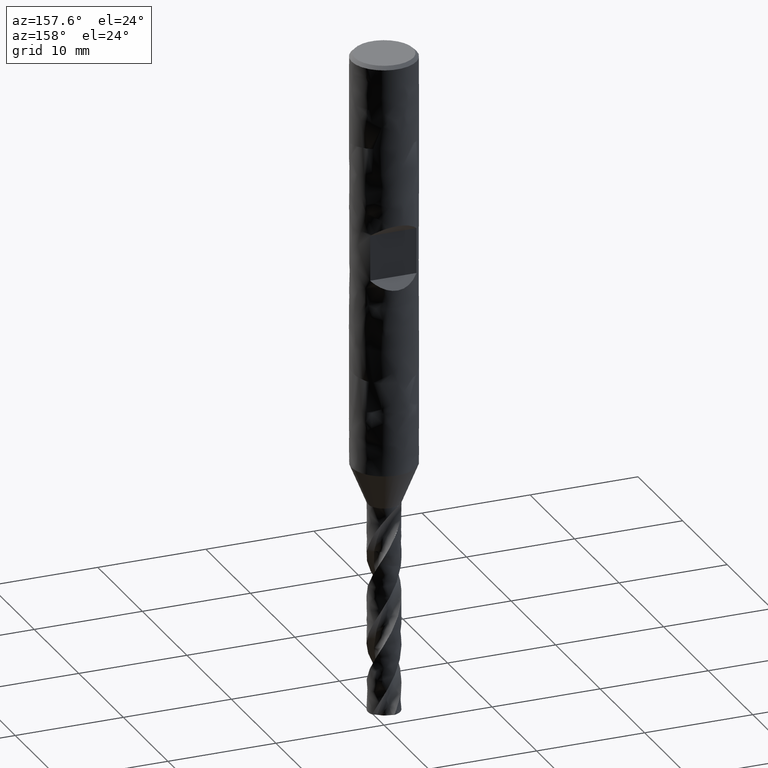
[diagram: clean part render]
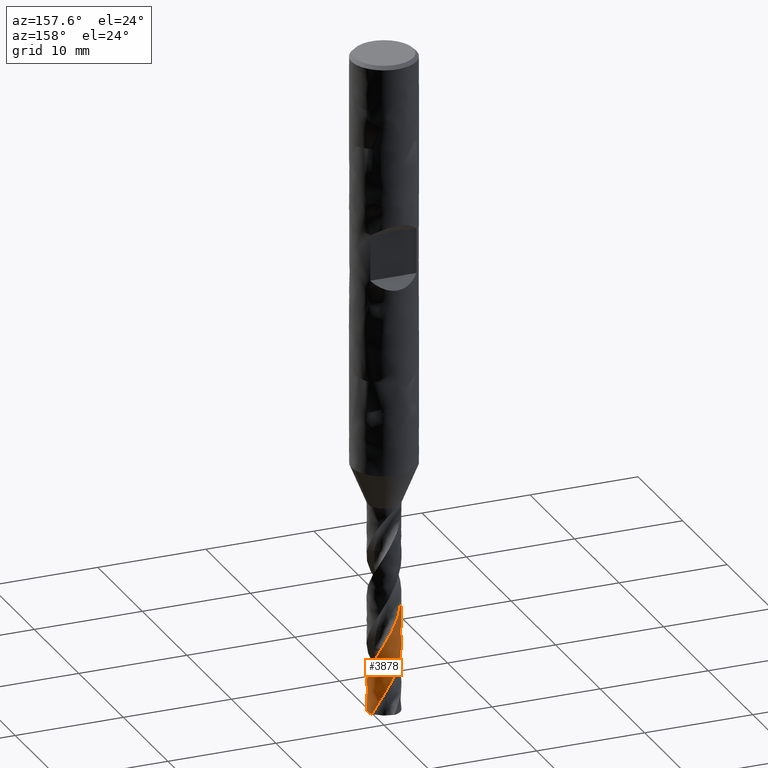
[diagram: same view with one face highlighted and labeled with its STEP entity id]
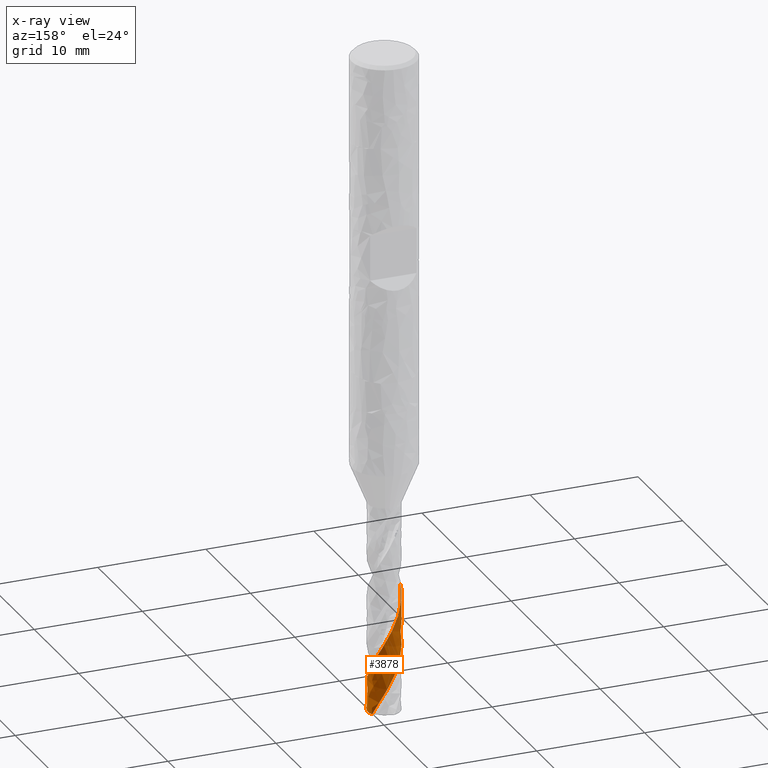
[diagram: x-ray of the same camera — body ghosted, the highlighted face saturated]
A machine part, auxiliary view. The second image highlights one B-rep face of the part: STEP entity #3878.
The next image is the same camera in x-ray: the body ghosted, the highlighted face saturated — about 0% of this face is hidden behind the body in this view.
In plain terms, the highlighted face is a freeform B-spline surface patch.
Its self-contained STEP definition (entity closure, byte-faithful):
#1699 = VERTEX_POINT('', #1700);
#1700 = CARTESIAN_POINT('', (-1.5, 3.41740027781363E-15, -54.3103819026507));
#1800 = EDGE_CURVE('', #1801, #1699, #1803, .T.);
#1801 = VERTEX_POINT('', #1802);
#1802 = CARTESIAN_POINT('', (1.36402506337757, 0.624047775797507, -61.4540446486007));
#1803 = B_SPLINE_CURVE_WITH_KNOTS('', 3, (#1804, #1805, #1806, #1807, #1808, #1809, #1810, #1811, #1812, #1813, #1814, #1815, #1816, #1817, #1818, #1819, #1820, #1821, #1822, #1823, #1824, #1825, #1826, #1827, #1828, #1829, #1830, #1831, #1832, #1833, #1834, #1835, #1836, #1837, #1838, #1839, #1840, #1841, #1842, #1843, #1844, #1845, #1846, #1847, #1848, #1849, #1850, #1851, #1852, #1853, #1854, #1855, #1856, #1857, #1858, #1859, #1860, #1861, #1862, #1863, #1864, #1865, #1866, #1867, #1868, #1869, #1870, #1871, #1872, #1873, #1874, #1875, #1876, #1877, #1878, #1879, #1880, #1881, #1882, #1883, #1884, #1885, #1886, #1887, #1888), .UNSPECIFIED., .F., .U., (4, 3, 3, 3, 3, 3, 3, 3, 3, 3, 3, 3, 3, 3, 3, 3, 3, 3, 3, 3, 3, 3, 3, 3, 3, 3, 3, 3, 4), (0., 0.443892613985302, 0.88748853087916, 1.33079520423711, 1.62624675594899, 1.92161329416679, 2.21689440505489, 2.51208925631208, 2.8071965877195, 3.1022147220413, 3.39714151043316, 3.45549942805264, 3.48144835894082, 3.92628544991433, 4.22239166911702, 4.51840185150683, 4.81431895983337, 5.11014538677696, 5.40588300687049, 5.70153321658979, 5.99709698511393, 6.29257487289695, 6.5879670279586, 6.8832731889615, 7.17849268043902, 7.47362440001157, 7.76866679709681, 8.06361784225344, 8.22012901162197), .UNSPECIFIED.);
#1804 = CARTESIAN_POINT('', (1.36402506337757, 0.624047775797509, -61.4540446486007));
#1805 = CARTESIAN_POINT('', (1.33361656175587, 0.690513774011757, -61.3253939588564));
#1806 = CARTESIAN_POINT('', (1.29831440715912, 0.754800844518819, -61.1966636268079));
#1807 = CARTESIAN_POINT('', (1.25853747785152, 0.816139336659582, -61.0680215219669));
#1808 = CARTESIAN_POINT('', (1.2187871353779, 0.877436830253314, -60.9394654012966));
#1809 = CARTESIAN_POINT('', (1.17451709888051, 0.935868176912462, -60.8108296889209));
#1810 = CARTESIAN_POINT('', (1.12625317830449, 0.990733959425563, -60.6822820771606));
#1811 = CARTESIAN_POINT('', (1.0780207278717, 1.0455639670987, -60.5538182839485));
#1812 = CARTESIAN_POINT('', (1.02573786307011, 1.09690322431961, -60.425274976682));
#1813 = CARTESIAN_POINT('', (0.970025986863271, 1.14413704808906, -60.2968195450169));
#1814 = CARTESIAN_POINT('', (0.932895572945953, 1.17561707617044, -60.2112075772931));
#1815 = CARTESIAN_POINT('', (0.894217485994377, 1.20529888006559, -60.1255728673317));
#1816 = CARTESIAN_POINT('', (0.854197027885903, 1.23302369707597, -60.0399646534866));
#1817 = CARTESIAN_POINT('', (0.814188085299885, 1.26074053652268, -59.9543810726257));
#1818 = CARTESIAN_POINT('', (0.772814012301869, 1.28651781376227, -59.8687747770296));
#1819 = CARTESIAN_POINT('', (0.730294519269985, 1.31021750679963, -59.7831949590174));
#1820 = CARTESIAN_POINT('', (0.687787323930223, 1.33391034529787, -59.6976398928115));
#1821 = CARTESIAN_POINT('', (0.644110398519465, 1.35554072347135, -59.6120620952617));
#1822 = CARTESIAN_POINT('', (0.599495624388484, 1.37499272592224, -59.5265108057615));
#1823 = CARTESIAN_POINT('', (0.55489388344455, 1.394439045915, -59.4409845081161));
#1824 = CARTESIAN_POINT('', (0.509328840051526, 1.41171960958914, -59.3554354049121));
#1825 = CARTESIAN_POINT('', (0.463042134407975, 1.42674173618176, -59.2699129000451));
#1826 = CARTESIAN_POINT('', (0.41676915192222, 1.44175940898985, -59.1844157510295));
#1827 = CARTESIAN_POINT('', (0.369748320757895, 1.45452863343373, -59.0988956897155));
#1828 = CARTESIAN_POINT('', (0.322228653773529, 1.46498078304372, -59.0134023232318));
#1829 = CARTESIAN_POINT('', (0.274723349752579, 1.47542977345981, -58.9279347973773));
#1830 = CARTESIAN_POINT('', (0.226692513376678, 1.48356903554982, -58.842444285489));
#1831 = CARTESIAN_POINT('', (0.178390267763989, 1.48935452876987, -58.7569805246105));
#1832 = CARTESIAN_POINT('', (0.130102977888017, 1.49513823063814, -58.6715432257213));
#1833 = CARTESIAN_POINT('', (0.0815171878159906, 1.49857288856306, -58.5860829127309));
#1834 = CARTESIAN_POINT('', (0.0328898616455863, 1.4996393756505, -58.5006493633071));
#1835 = CARTESIAN_POINT('', (0.0232678482971832, 1.49985040417704, -58.4837444084659));
#1836 = CARTESIAN_POINT('', (0.0136435651749297, 1.49996882820287, -58.4668393357588));
#1837 = CARTESIAN_POINT('', (0.00401902435641482, 1.49999461580475, -58.4499345222097));
#1838 = CARTESIAN_POINT('', (-0.000260541377210574, 1.50000608229852, -58.4424177728746));
#1839 = CARTESIAN_POINT('', (-0.00454018917412268, 1.49999923396253, -58.4349010200096));
#1840 = CARTESIAN_POINT('', (-0.00881974195132215, 1.49997407049343, -58.4273842966714));
#1841 = CARTESIAN_POINT('', (-0.0821832194788096, 1.49954269840962, -58.2985266817735));
#1842 = CARTESIAN_POINT('', (-0.155570168872683, 1.49371433056338, -58.1695884104485));
#1843 = CARTESIAN_POINT('', (-0.228096496080459, 1.48255589725215, -58.0407393046629));
#1844 = CARTESIAN_POINT('', (-0.276373712566956, 1.47512827584409, -57.9549707787552));
#1845 = CARTESIAN_POINT('', (-0.324305141501079, 1.46533705297268, -57.8691791585663));
#1846 = CARTESIAN_POINT('', (-0.371633915506548, 1.45323371583696, -57.7834143895224));
#1847 = CARTESIAN_POINT('', (-0.418947339261605, 1.44113430420448, -57.6976774367638));
#1848 = CARTESIAN_POINT('', (-0.465686353211799, 1.42671714819546, -57.6119174502957));
#1849 = CARTESIAN_POINT('', (-0.511600312885757, 1.41005855192443, -57.5261842573367));
#1850 = CARTESIAN_POINT('', (-0.55749983589827, 1.39340519359228, -57.4404780213444));
#1851 = CARTESIAN_POINT('', (-0.602601960556023, 1.37450195462755, -57.3547487882909));
#1852 = CARTESIAN_POINT('', (-0.646664728676739, 1.35344919693554, -57.269046318644));
#1853 = CARTESIAN_POINT('', (-0.690713994121748, 1.33240289068932, -57.1833701118195));
#1854 = CARTESIAN_POINT('', (-0.733750597959446, 1.30919593336018, -57.0976709091719));
#1855 = CARTESIAN_POINT('', (-0.775543676028058, 1.2839517150473, -57.0119984790907));
#1856 = CARTESIAN_POINT('', (-0.817324207849006, 1.25871507502799, -56.9263517678026));
#1857 = CARTESIAN_POINT('', (-0.857886563468358, 1.23142754332114, -56.8406820142341));
#1858 = CARTESIAN_POINT('', (-0.897013292399723, 1.20223423394038, -56.7550390941314));
#1859 = CARTESIAN_POINT('', (-0.936128456748884, 1.17304955314769, -56.6694214872767));
#1860 = CARTESIAN_POINT('', (-0.973831644617153, 1.14194322039067, -56.5837807525925));
#1861 = CARTESIAN_POINT('', (-1.0099209335908, 1.10908056871225, -56.4981669358069));
#1862 = CARTESIAN_POINT('', (-1.04599967090182, 1.07622752530331, -56.4125781504957));
#1863 = CARTESIAN_POINT('', (-1.08048625275594, 1.04160025998082, -56.3269661629425));
#1864 = CARTESIAN_POINT('', (-1.11319610502739, 1.00538272899023, -56.2413811529724));
#1865 = CARTESIAN_POINT('', (-1.14589645293243, 0.969175721577756, -56.1558210110846));
#1866 = CARTESIAN_POINT('', (-1.17683981791797, 0.931358656404296, -56.0702376305212));
#1867 = CARTESIAN_POINT('', (-1.20586059182671, 0.892132407818109, -55.9846812507338));
#1868 = CARTESIAN_POINT('', (-1.23487294537635, 0.85291754070302, -55.8991496950755));
#1869 = CARTESIAN_POINT('', (-1.26198037684881, 0.812271932593048, -55.813594897437));
#1870 = CARTESIAN_POINT('', (-1.28703771624542, 0.770411524421716, -55.7280670923397));
#1871 = CARTESIAN_POINT('', (-1.31208776099225, 0.728563302580787, -55.6425641859507));
#1872 = CARTESIAN_POINT('', (-1.33510320895868, 0.685477089005118, -55.5570380618178));
#1873 = CARTESIAN_POINT('', (-1.35596064033692, 0.641381900163305, -55.4715388963754));
#1874 = CARTESIAN_POINT('', (-1.37681195025914, 0.597299652836412, -55.386064824118));
#1875 = CARTESIAN_POINT('', (-1.39551845664922, 0.552183752953386, -55.3005675795396));
#1876 = CARTESIAN_POINT('', (-1.4119796260725, 0.50627417034269, -55.215097240773));
#1877 = CARTESIAN_POINT('', (-1.42843590141447, 0.460378237140785, -55.1296523132502));
#1878 = CARTESIAN_POINT('', (-1.44265765490147, 0.413662632558517, -55.0441842728621));
#1879 = CARTESIAN_POINT('', (-1.45456818322171, 0.366376036824403, -54.9587430737776));
#1880 = CARTESIAN_POINT('', (-1.46647510678535, 0.319103752518262, -54.8733277337246));
#1881 = CARTESIAN_POINT('', (-1.47607910739006, 0.271233384611796, -54.787889346304));
#1882 = CARTESIAN_POINT('', (-1.48332804591319, 0.223019972665049, -54.7024777322964));
#1883 = CARTESIAN_POINT('', (-1.49057473999782, 0.174821488702247, -54.6170925636937));
#1884 = CARTESIAN_POINT('', (-1.4954720574103, 0.126252011123265, -54.5316844103939));
#1885 = CARTESIAN_POINT('', (-1.49799292999016, 0.0775704950343546, -54.4463029683735));
#1886 = CARTESIAN_POINT('', (-1.49933059168617, 0.0517384082022425, -54.4009966385522));
#1887 = CARTESIAN_POINT('', (-1.5, 0.025868607815089, -54.3556871418676));
#1888 = CARTESIAN_POINT('', (-1.5, 3.33369987009775E-15, -54.3103819026507));
#2118 = VERTEX_POINT('', #2119);
#2119 = CARTESIAN_POINT('', (-1.5, 3.132329119477E-15, -49.6548165831626));
#2150 = EDGE_CURVE('', #2118, #1699, #2151, .T.);
#2151 = LINE('', #2152, #2153);
#2152 = CARTESIAN_POINT('', (-1.5, 3.132329119477E-15, -49.6548165831626));
#2153 = VECTOR('', #2154, 4.65556531948811);
#2154 = DIRECTION('', (0., 2.85071158336627E-16, -4.65556531948811));
#2236 = VERTEX_POINT('', #2237);
#2237 = CARTESIAN_POINT('', (0.339563992923457, -1.4610599901133, -61.4540446486007));
#2319 = EDGE_CURVE('', #2320, #2236, #2322, .T.);
#2320 = VERTEX_POINT('', #2321);
#2321 = CARTESIAN_POINT('', (0.576933502301421, -1.38461104066167, -61.0129924518385));
#2322 = B_SPLINE_CURVE_WITH_KNOTS('', 3, (#2323, #2324, #2325, #2326, #2327, #2328, #2329), .UNSPECIFIED., .F., .U., (4, 3, 4), (0., 0.29518519090963, 0.506774732636537), .UNSPECIFIED.);
#2323 = CARTESIAN_POINT('', (0.57693350230142, -1.38461104066168, -61.0129924518385));
#2324 = CARTESIAN_POINT('', (0.53218490222688, -1.40325668612161, -61.0986165795408));
#2325 = CARTESIAN_POINT('', (0.486522783597822, -1.41973410562699, -61.1842676221976));
#2326 = CARTESIAN_POINT('', (0.440186733506665, -1.43395803273477, -61.2698961157475));
#2327 = CARTESIAN_POINT('', (0.406972927712375, -1.44415378208458, -61.331274851087));
#2328 = CARTESIAN_POINT('', (0.373401793485711, -1.45319576910361, -61.3926637343598));
#2329 = CARTESIAN_POINT('', (0.339563992923457, -1.4610599901133, -61.4540446486007));
#3688 = EDGE_CURVE('', #1801, #2236, #3689, .T.);
#3689 = CIRCLE('', #3690, 1.5);
#3690 = AXIS2_PLACEMENT_3D('', #3691, #3692, #3693);
#3691 = CARTESIAN_POINT('', (2.30415761614694E-31, 3.76297495367837E-15, -61.4540446486007));
#3692 = DIRECTION('', (3.74939945665464E-33, 6.12323399573677E-17, -1.));
#3693 = DIRECTION('', (-1., 6.12323399573677E-17, 0.));
#3878 = ADVANCED_FACE('', (#3879), #4021, .T.);
#3879 = FACE_OUTER_BOUND('', #3880, .T.);
#3880 = EDGE_LOOP('', (#3881, #3882, #3883, #3884, #3885));
#3881 = ORIENTED_EDGE('', *, *, #2319, .T.);
#3882 = ORIENTED_EDGE('', *, *, #3688, .F.);
#3883 = ORIENTED_EDGE('', *, *, #1800, .T.);
#3884 = ORIENTED_EDGE('', *, *, #2150, .F.);
#3885 = ORIENTED_EDGE('', *, *, #3886, .F.);
#3886 = EDGE_CURVE('', #2320, #2118, #3887, .T.);
#3887 = B_SPLINE_CURVE_WITH_KNOTS('', 3, (#3888, #3889, #3890, #3891, #3892, #3893, #3894, #3895, #3896, #3897, #3898, #3899, #3900, #3901, #3902, #3903, #3904, #3905, #3906, #3907, #3908, #3909, #3910, #3911, #3912, #3913, #3914, #3915, #3916, #3917, #3918, #3919, #3920, #3921, #3922, #3923, #3924, #3925, #3926, #3927, #3928, #3929, #3930, #3931, #3932, #3933, #3934, #3935, #3936, #3937, #3938, #3939, #3940, #3941, #3942, #3943, #3944, #3945, #3946, #3947, #3948, #3949, #3950, #3951, #3952, #3953, #3954, #3955, #3956, #3957, #3958, #3959, #3960, #3961, #3962, #3963, #3964, #3965, #3966, #3967, #3968, #3969, #3970, #3971, #3972, #3973, #3974, #3975, #3976, #3977, #3978, #3979, #3980, #3981, #3982, #3983, #3984, #3985, #3986, #3987, #3988, #3989, #3990, #3991, #3992, #3993, #3994, #3995, #3996, #3997, #3998, #3999, #4000, #4001, #4002, #4003, #4004, #4005, #4006, #4007, #4008, #4009, #4010, #4011, #4012, #4013, #4014, #4015, #4016, #4017, #4018, #4019, #4020), .UNSPECIFIED., .F., .U., (4, 3, 3, 3, 3, 3, 3, 3, 3, 3, 3, 3, 3, 3, 3, 3, 3, 3, 3, 3, 3, 3, 3, 3, 3, 3, 3, 3, 3, 3, 3, 3, 3, 3, 3, 3, 3, 3, 3, 3, 3, 3, 3, 3, 4), (0., 0.443960123811513, 0.887624648255791, 1.33100110600915, 1.77409402837916, 2.06945066210197, 2.36472232120494, 2.65990806701977, 2.95500652978959, 3.25001589724884, 3.54493390414548, 3.60330507877786, 4.0481284175225, 4.34422962873711, 4.6402354539754, 4.93614874957008, 5.2319718106576, 5.5277064212245, 5.8233538962201, 6.11891513372069, 6.41439061670736, 6.70978041781783, 7.00508420133459, 7.300301217346, 7.59543028787929, 7.89046978447147, 8.18541759627434, 8.3166466923451, 8.35556631498481, 8.6518272063546, 8.94798553948529, 9.24404524014352, 9.54000955516152, 9.83588112809574, 10.1316620581541, 10.4273539453267, 10.7229579238672, 11.0184746856609, 11.3139044945319, 11.6092471925424, 11.9045022097871, 12.1996685554703, 12.4947447936461, 12.7897290154414, 13.073353303165), .UNSPECIFIED.);
#3888 = CARTESIAN_POINT('', (0.576933502301421, -1.38461104066167, -61.0129924518385));
#3889 = CARTESIAN_POINT('', (0.644235638862759, -1.35656788903395, -60.8842133006255));
#3890 = CARTESIAN_POINT('', (0.709542922785359, -1.3235817684258, -60.7553585135879));
#3891 = CARTESIAN_POINT('', (0.772076470821059, -1.28603962738502, -60.6265943542025));
#3892 = CARTESIAN_POINT('', (0.834568382510974, -1.24852248280798, -60.4979159291027));
#3893 = CARTESIAN_POINT('', (0.894370120345339, -1.20640739738555, -60.3691621626183));
#3894 = CARTESIAN_POINT('', (0.950767613079925, -1.16019004732773, -60.2404990691652));
#3895 = CARTESIAN_POINT('', (1.007128487518, -1.11400270570727, -60.1119195153001));
#3896 = CARTESIAN_POINT('', (1.0601611839113, -1.06365972199887, -59.9832644632246));
#3897 = CARTESIAN_POINT('', (1.10923215636329, -1.00975443712302, -59.8547001591172));
#3898 = CARTESIAN_POINT('', (1.15827174835576, -0.955883624207391, -59.7262180707626));
#3899 = CARTESIAN_POINT('', (1.20341674357393, -0.898386843134977, -59.5976604349818));
#3900 = CARTESIAN_POINT('', (1.24412685456813, -0.837942939431081, -59.4691932622769));
#3901 = CARTESIAN_POINT('', (1.27126337770963, -0.797652275722079, -59.3835596857551));
#3902 = CARTESIAN_POINT('', (1.29645171537913, -0.756025017532918, -59.2979051235979));
#3903 = CARTESIAN_POINT('', (1.31955672888457, -0.713281178256836, -59.212278256009));
#3904 = CARTESIAN_POINT('', (1.34265509503723, -0.670549636458035, -59.1266760234196));
#3905 = CARTESIAN_POINT('', (1.36368496888783, -0.62667693071333, -59.0410527985901));
#3906 = CARTESIAN_POINT('', (1.38253322007243, -0.581895089682118, -58.9554572873244));
#3907 = CARTESIAN_POINT('', (1.40137598710309, -0.537126278534043, -58.8698866812318));
#3908 = CARTESIAN_POINT('', (1.41804946722344, -0.491422586273327, -58.7842950022501));
#3909 = CARTESIAN_POINT('', (1.43246368640637, -0.445025602777107, -58.6987311363029));
#3910 = CARTESIAN_POINT('', (1.44687364346974, -0.398642338337636, -58.6131925706111));
#3911 = CARTESIAN_POINT('', (1.45903401738817, -0.351539392955993, -58.527632774172));
#3912 = CARTESIAN_POINT('', (1.46887884341289, -0.303965365418769, -58.4421009578248));
#3913 = CARTESIAN_POINT('', (1.47872069711501, -0.256405701300178, -58.3565949650066));
#3914 = CARTESIAN_POINT('', (1.48625398518913, -0.20834832423596, -58.2710675741645));
#3915 = CARTESIAN_POINT('', (1.49143726589458, -0.16004649918468, -58.1855683002434));
#3916 = CARTESIAN_POINT('', (1.49661894140543, -0.111759632580143, -58.100095504335));
#3917 = CARTESIAN_POINT('', (1.49945496122085, -0.0632015350609217, -58.0146012168791));
#3918 = CARTESIAN_POINT('', (1.49992867238243, -0.0146279788720253, -57.9291351105861));
#3919 = CARTESIAN_POINT('', (1.50002243090612, -0.005014135483306, -57.9122193682479));
#3920 = CARTESIAN_POINT('', (1.50002375797263, 0.00460094641178871, -57.8953035648978));
#3921 = CARTESIAN_POINT('', (1.49993264068326, 0.0142152528277466, -57.8783880712899));
#3922 = CARTESIAN_POINT('', (1.49923827232194, 0.0874820305925438, -57.7494818707457));
#3923 = CARTESIAN_POINT('', (1.49316076820648, 0.160758556064702, -57.6204986673147));
#3924 = CARTESIAN_POINT('', (1.48176733604269, 0.233164237903151, -57.4916075568716));
#3925 = CARTESIAN_POINT('', (1.47418318123393, 0.281361821581404, -57.4058098691318));
#3926 = CARTESIAN_POINT('', (1.46424147203574, 0.329209033220433, -57.3199907518989));
#3927 = CARTESIAN_POINT('', (1.45199370594134, 0.376449568875774, -57.2341997633583));
#3928 = CARTESIAN_POINT('', (1.43974988533951, 0.423674886475784, -57.148436411507));
#3929 = CARTESIAN_POINT('', (1.42519421646421, 0.47032195036422, -57.0626516866741));
#3930 = CARTESIAN_POINT('', (1.40840296644399, 0.516140566233446, -56.9768950388344));
#3931 = CARTESIAN_POINT('', (1.39161696526771, 0.561944859478469, -56.8911651980079));
#3932 = CARTESIAN_POINT('', (1.37258677277263, 0.60694851966625, -56.8054139959988));
#3933 = CARTESIAN_POINT('', (1.35141266046195, 0.650909994656063, -56.7196908695517));
#3934 = CARTESIAN_POINT('', (1.33024500489255, 0.694858064225811, -56.6339938831401));
#3935 = CARTESIAN_POINT('', (1.3069221587217, 0.737790706798585, -56.548275485545));
#3936 = CARTESIAN_POINT('', (1.28156733199191, 0.779477500362351, -56.4625852297097));
#3937 = CARTESIAN_POINT('', (1.25622008630607, 0.821151829655821, -56.3769205950944));
#3938 = CARTESIAN_POINT('', (1.22882718918707, 0.861605552291037, -56.2912344247394));
#3939 = CARTESIAN_POINT('', (1.19953342988958, 0.900621757774791, -56.2055765378547));
#3940 = CARTESIAN_POINT('', (1.17024830173758, 0.939626467480798, -56.1199438893041));
#3941 = CARTESIAN_POINT('', (1.13904654220661, 0.977217024545694, -56.0342895464313));
#3942 = CARTESIAN_POINT('', (1.10609303585948, 1.01319208249135, -55.9486636260967));
#3943 = CARTESIAN_POINT('', (1.07314914172988, 1.04915664686225, -55.8630626820108));
#3944 = CARTESIAN_POINT('', (1.03843579890946, 1.083527105839, -55.7774399375868));
#3945 = CARTESIAN_POINT('', (1.00213647611784, 1.11611938574425, -55.6918456963397));
#3946 = CARTESIAN_POINT('', (0.965847685257978, 1.1487022092839, -55.6062762895149));
#3947 = CARTESIAN_POINT('', (0.927953358522504, 1.17952627119615, -55.5206850377996));
#3948 = CARTESIAN_POINT('', (0.888653916705553, 1.20842633880758, -55.435122311796));
#3949 = CARTESIAN_POINT('', (0.849365870926861, 1.23731802598761, -55.3495843972414));
#3950 = CARTESIAN_POINT('', (0.808651365758289, 1.26430312366879, -55.2640246443569));
#3951 = CARTESIAN_POINT('', (0.766725992295305, 1.28923669383818, -55.1784933922079));
#3952 = CARTESIAN_POINT('', (0.724812827512944, 1.31416300334487, -55.0929870467838));
#3953 = CARTESIAN_POINT('', (0.681665740547317, 1.33705309889844, -55.0074589094831));
#3954 = CARTESIAN_POINT('', (0.637513560008118, 1.35778365758533, -54.9219592119068));
#3955 = CARTESIAN_POINT('', (0.593374352464101, 1.37850812512485, -54.8364846362418));
#3956 = CARTESIAN_POINT('', (0.54820539658208, 1.39708616447681, -54.7509883429151));
#3957 = CARTESIAN_POINT('', (0.502246676043336, 1.41341723365872, -54.6655204046672));
#3958 = CARTESIAN_POINT('', (0.456301646658668, 1.42974343779692, -54.5800779274135));
#3959 = CARTESIAN_POINT('', (0.409540750396427, 1.44383343831409, -54.4946138213845));
#3960 = CARTESIAN_POINT('', (0.362212898654281, 1.45561046164439, -54.4091779755297));
#3961 = CARTESIAN_POINT('', (0.314899411278874, 1.46738391055759, -54.3237680601107));
#3962 = CARTESIAN_POINT('', (0.266991629010273, 1.4768526611458, -54.2383366053714));
#3963 = CARTESIAN_POINT('', (0.218745027478863, 1.48396449181022, -54.1529333200476));
#3964 = CARTESIAN_POINT('', (0.170513418785862, 1.49107411244274, -54.0675565741612));
#3965 = CARTESIAN_POINT('', (0.121914689956023, 1.49583246918274, -53.9821583638003));
#3966 = CARTESIAN_POINT('', (0.0732083946548478, 1.49821244520017, -53.8967882517411));
#3967 = CARTESIAN_POINT('', (0.0515378385443959, 1.4992713515183, -53.8588051164586));
#3968 = CARTESIAN_POINT('', (0.0298418508333122, 1.49986009424185, -53.8208204659838));
#3969 = CARTESIAN_POINT('', (0.00814336048740556, 1.49997789506379, -53.7828387007498));
#3970 = CARTESIAN_POINT('', (0.00170807226703586, 1.50001283215985, -53.7715741564197));
#3971 = CARTESIAN_POINT('', (-0.00472757759731467, 1.50000635558633, -53.7603096141093));
#3972 = CARTESIAN_POINT('', (-0.0111629871042724, 1.49995846199784, -53.7490451867058));
#3973 = CARTESIAN_POINT('', (-0.0601501053636327, 1.49959389018918, -53.6632989981002));
#3974 = CARTESIAN_POINT('', (-0.109139258144268, 1.49682652417861, -53.5775306269597));
#3975 = CARTESIAN_POINT('', (-0.15786734317521, 1.49166950158502, -53.4917911472812));
#3976 = CARTESIAN_POINT('', (-0.206578559740754, 1.4865142642259, -53.4060813485032));
#3977 = CARTESIAN_POINT('', (-0.255056796003431, 1.47896806501853, -53.320349390423));
#3978 = CARTESIAN_POINT('', (-0.303041475292439, 1.46906972749854, -53.2346462856603));
#3979 = CARTESIAN_POINT('', (-0.351010173779865, 1.45917468651758, -53.1489717234311));
#3980 = CARTESIAN_POINT('', (-0.398513277877646, 1.4469233636399, -53.0632750559818));
#3981 = CARTESIAN_POINT('', (-0.445295125833414, 1.43237992547684, -52.9776071764002));
#3982 = CARTESIAN_POINT('', (-0.492061901435503, 1.41784117297399, -52.8919668976219));
#3983 = CARTESIAN_POINT('', (-0.538135058605278, 1.40100332212008, -52.8063045881605));
#3984 = CARTESIAN_POINT('', (-0.583266238032689, 1.38195531605447, -52.7206709844631));
#3985 = CARTESIAN_POINT('', (-0.628383275351031, 1.36291327878877, -52.6350642145374));
#3986 = CARTESIAN_POINT('', (-0.67258540718014, 1.3416512805158, -52.5494354975542));
#3987 = CARTESIAN_POINT('', (-0.715633941991976, 1.31828223877478, -52.4638353992167));
#3988 = CARTESIAN_POINT('', (-0.758669288504037, 1.2949203563466, -52.3782615252272));
#3989 = CARTESIAN_POINT('', (-0.800577265121248, 1.26943885362899, -52.2926657845177));
#3990 = CARTESIAN_POINT('', (-0.841131167167909, 1.24197357444463, -52.2070985829876));
#3991 = CARTESIAN_POINT('', (-0.881672860731544, 1.21451656350026, -52.1215571408956));
#3992 = CARTESIAN_POINT('', (-0.920885548832099, 1.18506053211071, -52.0359938956991));
#3993 = CARTESIAN_POINT('', (-0.958556758660112, 1.15376294810807, -51.9504591316094));
#3994 = CARTESIAN_POINT('', (-0.996216768909542, 1.12247466881726, -51.8649497968413));
#3995 = CARTESIAN_POINT('', (-1.03235887629391, 1.08932709832778, -51.7794186913204));
#3996 = CARTESIAN_POINT('', (-1.06678697946444, 1.05449776692279, -51.6939160450959));
#3997 = CARTESIAN_POINT('', (-1.1012049247637, 1.01967871176981, -51.6084386260779));
#3998 = CARTESIAN_POINT('', (-1.13393060398942, 0.98315791865107, -51.522939421687));
#3999 = CARTESIAN_POINT('', (-1.16478628675658, 0.94513115819119, -51.4374687070987));
#4000 = CARTESIAN_POINT('', (-1.19563289054027, 0.907115586734402, -51.3520231414339));
#4001 = CARTESIAN_POINT('', (-1.22462906680563, 0.867572184144235, -51.2665557121354));
#4002 = CARTESIAN_POINT('', (-1.25161727720155, 0.826712883297815, -51.1811168722327));
#4003 = CARTESIAN_POINT('', (-1.27859752981474, 0.7858656302839, -51.0957032249498));
#4004 = CARTESIAN_POINT('', (-1.30358694634123, 0.743679133770045, -51.0102675866933));
#4005 = CARTESIAN_POINT('', (-1.32644970663071, 0.700379308503119, -50.9248606632279));
#4006 = CARTESIAN_POINT('', (-1.34930567946838, 0.657092338004124, -50.8394790952039));
#4007 = CARTESIAN_POINT('', (-1.37004958250694, 0.612667482224507, -50.7540754307765));
#4008 = CARTESIAN_POINT('', (-1.38856849483653, 0.567342520129987, -50.6687005681714));
#4009 = CARTESIAN_POINT('', (-1.40708184553031, 0.522031170116311, -50.5833513455113));
#4010 = CARTESIAN_POINT('', (-1.42338224226565, 0.475794069775146, -50.497979974953));
#4011 = CARTESIAN_POINT('', (-1.43738061840664, 0.428878721585752, -50.4126374417568));
#4012 = CARTESIAN_POINT('', (-1.45137472116483, 0.381977695574828, -50.3273209616763));
#4013 = CARTESIAN_POINT('', (-1.46307627450716, 0.334371791977183, -50.2419823284875));
#4014 = CARTESIAN_POINT('', (-1.47242084640022, 0.286315998655777, -50.1566725246511));
#4015 = CARTESIAN_POINT('', (-1.4817625042881, 0.238275191021432, -50.071389323768));
#4016 = CARTESIAN_POINT('', (-1.48875404423603, 0.189756998566317, -49.9860840021723));
#4017 = CARTESIAN_POINT('', (-1.49335625950738, 0.141021566402289, -49.9008074673605));
#4018 = CARTESIAN_POINT('', (-1.49778124203812, 0.0941629508793936, -49.8188149584109));
#4019 = CARTESIAN_POINT('', (-1.5, 0.0470777939699097, -49.736802942747));
#4020 = CARTESIAN_POINT('', (-1.5, 3.20388646286104E-15, -49.6548165831626));
#4021 = (
   BOUNDED_SURFACE ()
   B_SPLINE_SURFACE (2, 1, ((#4022, #4023), (#4024, #4025), (#4026, #4027), (#4028, #4029), (#4030, #4031), (#4032, #4033), (#4034, #4035)), .UNSPECIFIED., .F., .F., .U.)
   B_SPLINE_SURFACE_WITH_KNOTS ((3, 2, 2, 3), (2, 2), (0., 2.35619449019235, 4.71238898038469, 6.70379063924259), (0.393482009599129, 1.), .UNSPECIFIED.)
   GEOMETRIC_REPRESENTATION_ITEM ()
   RATIONAL_B_SPLINE_SURFACE (((1., 1.), (0.707106781186548, 0.707106781186548), (1., 1.), (0.707106781186548, 0.707106781186548), (1., 1.), (0.752453354661005, 0.752453354661005), (0.923348227816979, 0.923348227816979)))
   REPRESENTATION_ITEM ('')
   SURFACE ()
);
#4022 = CARTESIAN_POINT('', (-1.5, 3.132329119477E-15, -49.6548165831626));
#4023 = CARTESIAN_POINT('', (-1.5, 3.85482346361442E-15, -61.4540446486007));
#4024 = CARTESIAN_POINT('', (-1.5, 1.5, -49.6548165831626));
#4025 = CARTESIAN_POINT('', (-1.5, 1.5, -61.4540446486007));
#4026 = CARTESIAN_POINT('', (1.97215226305253E-31, 1.5, -49.6548165831626));
#4027 = CARTESIAN_POINT('', (2.34193081237488E-31, 1.5, -61.4540446486007));
#4028 = CARTESIAN_POINT('', (1.5, 1.5, -49.6548165831626));
#4029 = CARTESIAN_POINT('', (1.5, 1.5, -61.4540446486007));
#4030 = CARTESIAN_POINT('', (1.5, 3.132329119477E-15, -49.6548165831626));
#4031 = CARTESIAN_POINT('', (1.5, 3.85482346361442E-15, -61.4540446486007));
#4032 = CARTESIAN_POINT('', (1.5, -1.19136381968808, -49.6548165831626));
#4033 = CARTESIAN_POINT('', (1.5, -1.19136381968808, -61.4540446486007));
#4034 = CARTESIAN_POINT('', (0.339563992923457, -1.4610599901133, -49.6548165831626));
#4035 = CARTESIAN_POINT('', (0.339563992923457, -1.4610599901133, -61.4540446486007));